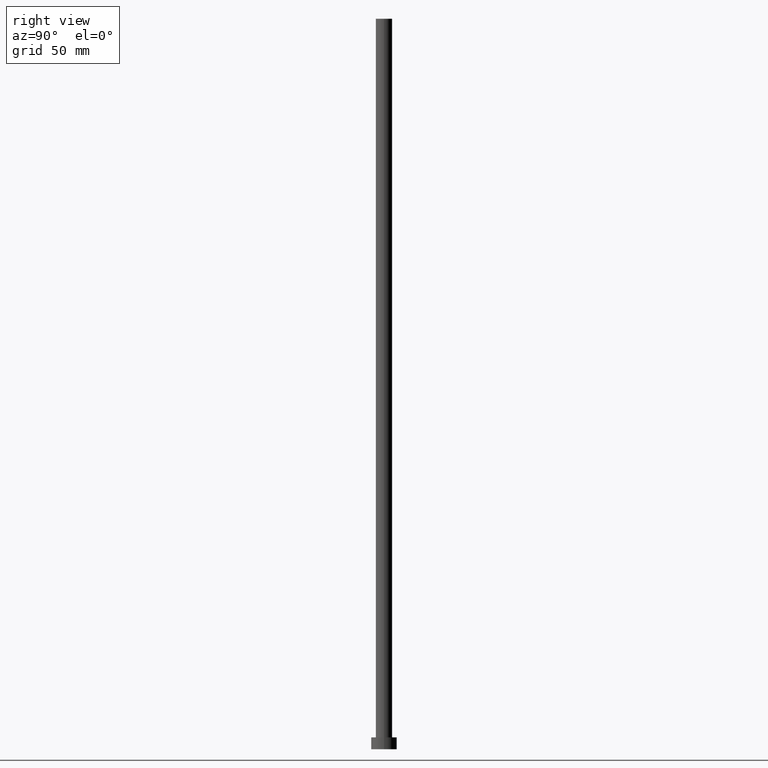
[diagram: clean part render]
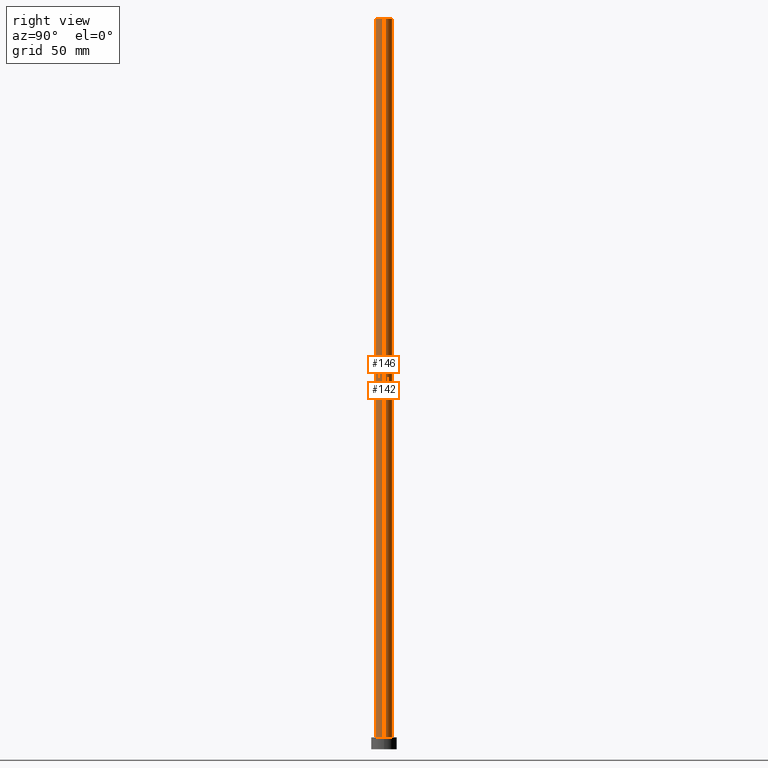
[diagram: same view with one multi-face feature highlighted, each face labeled with its STEP entity id]
A machine part, right view. The highlighted faces form ONE feature: a constant-radius fillet chain: 2 tangent blend faces with common blend radius 4.5 mm. The faces share edges in the B-rep.
Their STEP definitions:
[1] entity #146 (Cylinder):
#1 = AXIS2_PLACEMENT_3D ( 'NONE', #96, #161, #177 ) ;
#3 = LINE ( 'NONE', #108, #54 ) ;
#8 = AXIS2_PLACEMENT_3D ( 'NONE', #20, #75, #156 ) ;
#12 = EDGE_CURVE ( 'NONE', #253, #102, #3, .T. ) ;
#20 = CARTESIAN_POINT ( 'NONE',  ( 0.000000000000000000, 0.000000000000000000, 400.0000000000000000 ) ) ;
#22 = LINE ( 'NONE', #60, #243 ) ;
#36 = VERTEX_POINT ( 'NONE', #238 ) ;
#41 = VERTEX_POINT ( 'NONE', #130 ) ;
#42 = DIRECTION ( 'NONE',  ( -0.000000000000000000, -0.000000000000000000, -1.000000000000000000 ) ) ;
#48 = CARTESIAN_POINT ( 'NONE',  ( -4.500000000000000888, 0.000000000000000000, 400.0000000000000000 ) ) ;
#54 = VECTOR ( 'NONE', #150, 1000.000000000000000 ) ;
#58 = CARTESIAN_POINT ( 'NONE',  ( -4.500000000000000888, 0.000000000000000000, 6.500000000000000000 ) ) ;
#60 = CARTESIAN_POINT ( 'NONE',  ( 4.500000000000000888, 5.510910596163089556E-16, 400.0000000000000000 ) ) ;
#69 = ORIENTED_EDGE ( 'NONE', *, *, #194, .T. ) ;
#75 = DIRECTION ( 'NONE',  ( -0.000000000000000000, -0.000000000000000000, -1.000000000000000000 ) ) ;
#96 = CARTESIAN_POINT ( 'NONE',  ( 0.000000000000000000, 0.000000000000000000, 400.0000000000000000 ) ) ;
#101 = CIRCLE ( 'NONE', #248, 4.500000000000000888 ) ;
#102 = VERTEX_POINT ( 'NONE', #58 ) ;
#103 = DIRECTION ( 'NONE',  ( 0.000000000000000000, 0.000000000000000000, 1.000000000000000000 ) ) ;
#108 = CARTESIAN_POINT ( 'NONE',  ( -4.500000000000000888, 0.000000000000000000, 400.0000000000000000 ) ) ;
#112 = FACE_OUTER_BOUND ( 'NONE', #151, .T. ) ;
#129 = ORIENTED_EDGE ( 'NONE', *, *, #162, .F. ) ;
#130 = CARTESIAN_POINT ( 'NONE',  ( 4.500000000000000888, 5.510910596163089556E-16, 400.0000000000000000 ) ) ;
#136 = EDGE_CURVE ( 'NONE', #41, #36, #22, .T. ) ;
#143 = DIRECTION ( 'NONE',  ( 1.000000000000000000, 0.000000000000000000, 0.000000000000000000 ) ) ;
#146 = ADVANCED_FACE ( 'NONE', ( #112 ), #193, .T. ) ;
#150 = DIRECTION ( 'NONE',  ( -0.000000000000000000, -0.000000000000000000, -1.000000000000000000 ) ) ;
#151 = EDGE_LOOP ( 'NONE', ( #233, #129, #229, #69 ) ) ;
#156 = DIRECTION ( 'NONE',  ( -1.000000000000000000, 0.000000000000000000, 0.000000000000000000 ) ) ;
#161 = DIRECTION ( 'NONE',  ( 0.000000000000000000, 0.000000000000000000, 1.000000000000000000 ) ) ;
#162 = EDGE_CURVE ( 'NONE', #253, #41, #245, .T. ) ;
#177 = DIRECTION ( 'NONE',  ( 1.000000000000000000, 0.000000000000000000, 0.000000000000000000 ) ) ;
#193 = CYLINDRICAL_SURFACE ( 'NONE', #8, 4.500000000000000888 ) ;
#194 = EDGE_CURVE ( 'NONE', #102, #36, #101, .T. ) ;
#223 = CARTESIAN_POINT ( 'NONE',  ( 0.000000000000000000, 0.000000000000000000, 6.500000000000000000 ) ) ;
#229 = ORIENTED_EDGE ( 'NONE', *, *, #12, .T. ) ;
#233 = ORIENTED_EDGE ( 'NONE', *, *, #136, .F. ) ;
#238 = CARTESIAN_POINT ( 'NONE',  ( 4.500000000000000888, 5.510910596163089556E-16, 6.500000000000000000 ) ) ;
#243 = VECTOR ( 'NONE', #42, 1000.000000000000000 ) ;
#245 = CIRCLE ( 'NONE', #1, 4.500000000000000888 ) ;
#248 = AXIS2_PLACEMENT_3D ( 'NONE', #223, #103, #143 ) ;
#253 = VERTEX_POINT ( 'NONE', #48 ) ;
[2] entity #142 (Cylinder):
#3 = LINE ( 'NONE', #108, #54 ) ;
#12 = EDGE_CURVE ( 'NONE', #253, #102, #3, .T. ) ;
#16 = ORIENTED_EDGE ( 'NONE', *, *, #12, .F. ) ;
#22 = LINE ( 'NONE', #60, #243 ) ;
#24 = AXIS2_PLACEMENT_3D ( 'NONE', #173, #77, #211 ) ;
#34 = ORIENTED_EDGE ( 'NONE', *, *, #44, .T. ) ;
#36 = VERTEX_POINT ( 'NONE', #238 ) ;
#40 = DIRECTION ( 'NONE',  ( -1.000000000000000000, 0.000000000000000000, 0.000000000000000000 ) ) ;
#41 = VERTEX_POINT ( 'NONE', #130 ) ;
#42 = DIRECTION ( 'NONE',  ( -0.000000000000000000, -0.000000000000000000, -1.000000000000000000 ) ) ;
#44 = EDGE_CURVE ( 'NONE', #36, #102, #152, .T. ) ;
#48 = CARTESIAN_POINT ( 'NONE',  ( -4.500000000000000888, 0.000000000000000000, 400.0000000000000000 ) ) ;
#54 = VECTOR ( 'NONE', #150, 1000.000000000000000 ) ;
#58 = CARTESIAN_POINT ( 'NONE',  ( -4.500000000000000888, 0.000000000000000000, 6.500000000000000000 ) ) ;
#60 = CARTESIAN_POINT ( 'NONE',  ( 4.500000000000000888, 5.510910596163089556E-16, 400.0000000000000000 ) ) ;
#62 = CIRCLE ( 'NONE', #24, 4.500000000000000888 ) ;
#64 = CARTESIAN_POINT ( 'NONE',  ( 0.000000000000000000, 0.000000000000000000, 6.500000000000000000 ) ) ;
#71 = ORIENTED_EDGE ( 'NONE', *, *, #120, .F. ) ;
#77 = DIRECTION ( 'NONE',  ( 0.000000000000000000, 0.000000000000000000, 1.000000000000000000 ) ) ;
#95 = ORIENTED_EDGE ( 'NONE', *, *, #136, .T. ) ;
#99 = FACE_OUTER_BOUND ( 'NONE', #250, .T. ) ;
#100 = CYLINDRICAL_SURFACE ( 'NONE', #237, 4.500000000000000888 ) ;
#102 = VERTEX_POINT ( 'NONE', #58 ) ;
#108 = CARTESIAN_POINT ( 'NONE',  ( -4.500000000000000888, 0.000000000000000000, 400.0000000000000000 ) ) ;
#118 = DIRECTION ( 'NONE',  ( 0.000000000000000000, 0.000000000000000000, 1.000000000000000000 ) ) ;
#120 = EDGE_CURVE ( 'NONE', #41, #253, #62, .T. ) ;
#130 = CARTESIAN_POINT ( 'NONE',  ( 4.500000000000000888, 5.510910596163089556E-16, 400.0000000000000000 ) ) ;
#132 = DIRECTION ( 'NONE',  ( 1.000000000000000000, 0.000000000000000000, 0.000000000000000000 ) ) ;
#136 = EDGE_CURVE ( 'NONE', #41, #36, #22, .T. ) ;
#142 = ADVANCED_FACE ( 'NONE', ( #99 ), #100, .T. ) ;
#150 = DIRECTION ( 'NONE',  ( -0.000000000000000000, -0.000000000000000000, -1.000000000000000000 ) ) ;
#152 = CIRCLE ( 'NONE', #215, 4.500000000000000888 ) ;
#160 = CARTESIAN_POINT ( 'NONE',  ( 0.000000000000000000, 0.000000000000000000, 400.0000000000000000 ) ) ;
#173 = CARTESIAN_POINT ( 'NONE',  ( 0.000000000000000000, 0.000000000000000000, 400.0000000000000000 ) ) ;
#181 = DIRECTION ( 'NONE',  ( -0.000000000000000000, -0.000000000000000000, -1.000000000000000000 ) ) ;
#211 = DIRECTION ( 'NONE',  ( 1.000000000000000000, 0.000000000000000000, 0.000000000000000000 ) ) ;
#215 = AXIS2_PLACEMENT_3D ( 'NONE', #64, #118, #132 ) ;
#237 = AXIS2_PLACEMENT_3D ( 'NONE', #160, #181, #40 ) ;
#238 = CARTESIAN_POINT ( 'NONE',  ( 4.500000000000000888, 5.510910596163089556E-16, 6.500000000000000000 ) ) ;
#243 = VECTOR ( 'NONE', #42, 1000.000000000000000 ) ;
#250 = EDGE_LOOP ( 'NONE', ( #71, #95, #34, #16 ) ) ;
#253 = VERTEX_POINT ( 'NONE', #48 ) ;